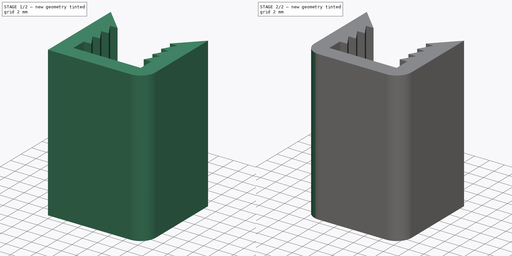
[diagram: build sequence overview — one tinted view per stage of 2, left to right]
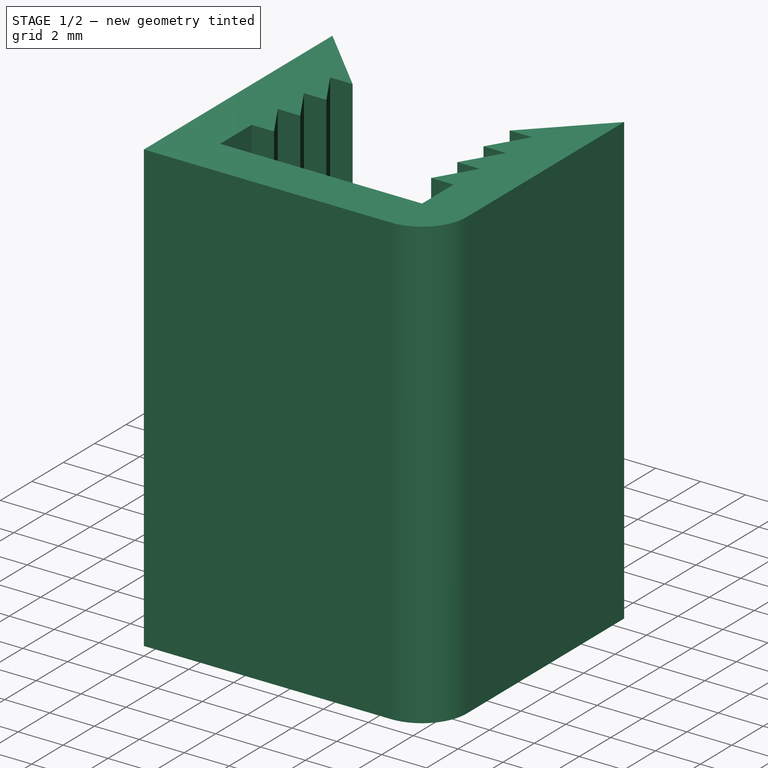
[diagram: stage 1 of 2 — iso view after this stage's code; geometry added in this stage tinted green]
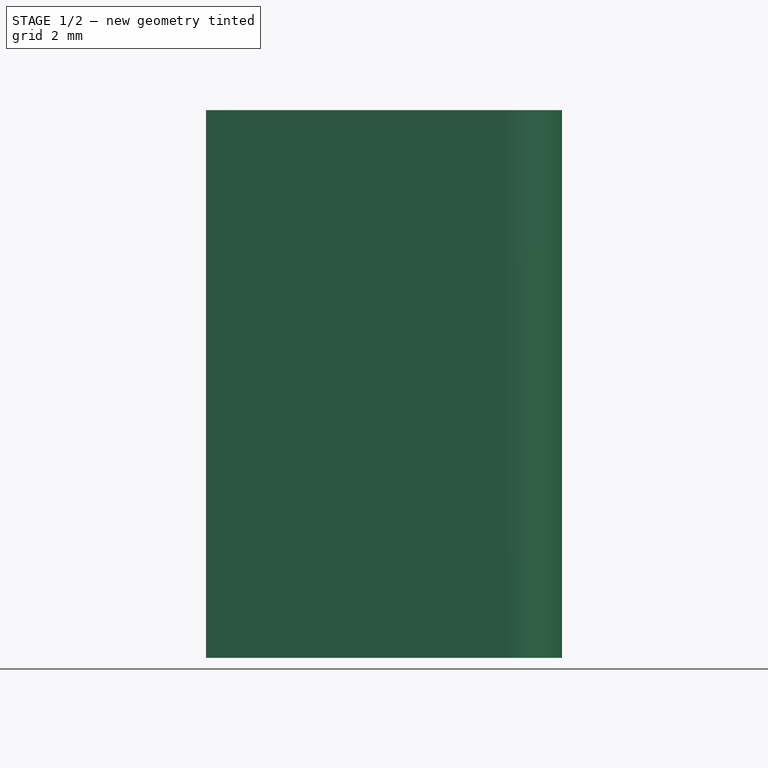
[diagram: stage 1 of 2 — front view after this stage's code; geometry added in this stage tinted green]
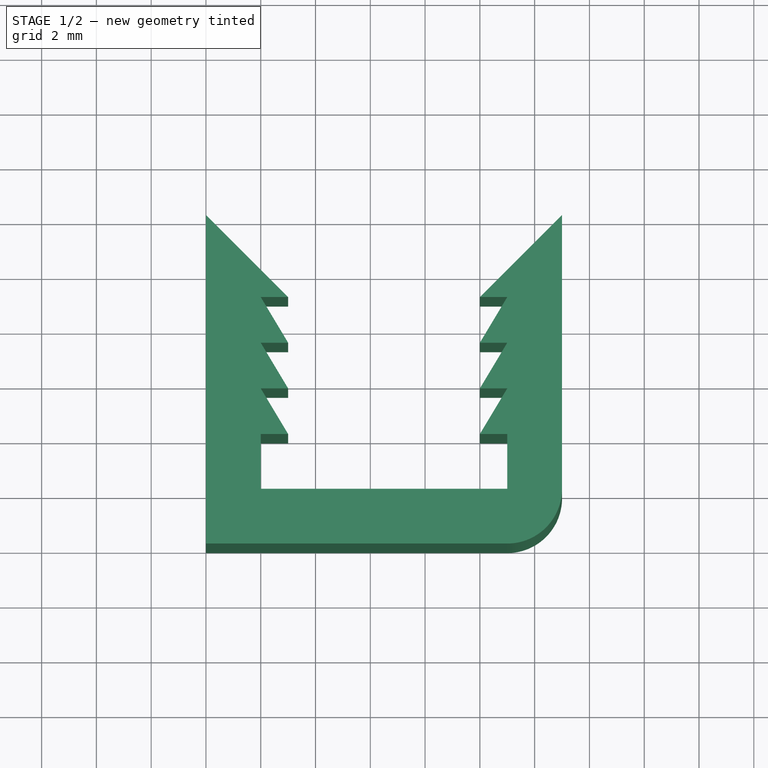
[diagram: stage 1 of 2 — top view after this stage's code; geometry added in this stage tinted green]
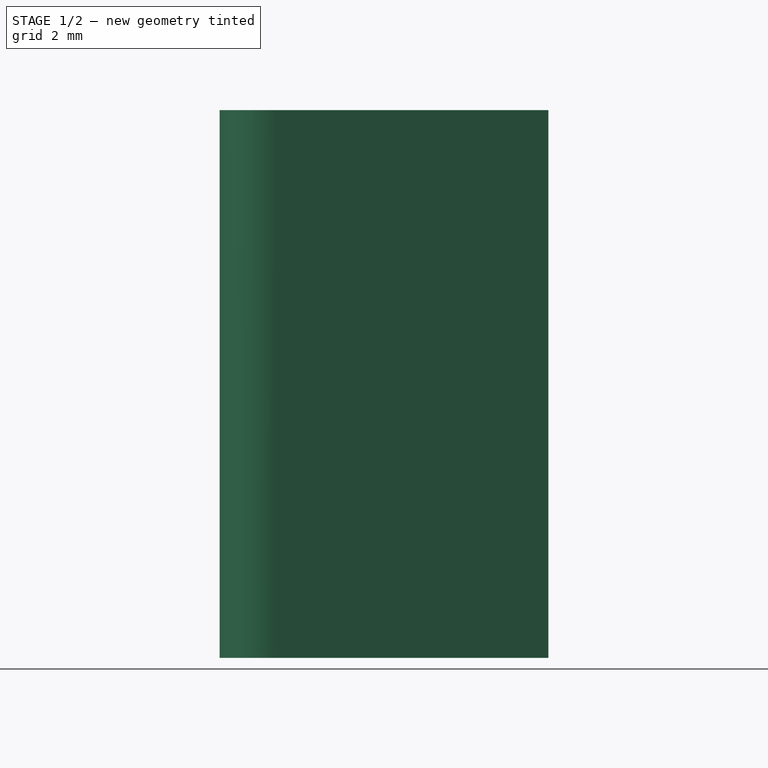
[diagram: stage 1 of 2 — right view after this stage's code; geometry added in this stage tinted green]
FCSTD DOCUMENT  (FreeCAD 0.18.4R)
Label: bed-clamp
License: All rights reserved
LicenseURL: http://en.wikipedia.org/wiki/All_rights_reserved
objects: PartDesign::Fillet×2, Sketcher::SketchObject×1, PartDesign::Pad×1, PartDesign::Body×1
note: 6 computed .brp shape members not serialized (recipe doc carries the construction recipe); baked Part::Feature solids carry a one-line shape summary decoded from their .brp

FEATURE [Sketcher::SketchObject] Sketch
  MapMode = 5
  Support = -> [XY_Plane]
  sketch-geometry (26):
    g0: LineSegment StartX=2 StartY=9 StartZ=0 EndX=3 EndY=9 EndZ=0
    g1: LineSegment StartX=3 StartY=9 StartZ=0 EndX=0 EndY=12 EndZ=0
    g2: LineSegment StartX=0 StartY=12 StartZ=0 EndX=0 EndY=0 EndZ=0
    g3: LineSegment StartX=0 StartY=0 StartZ=0 EndX=13 EndY=0 EndZ=0
    g4: LineSegment StartX=13 StartY=0 StartZ=0 EndX=13 EndY=12 EndZ=0
    g5: LineSegment StartX=13 StartY=12 StartZ=0 EndX=10 EndY=9 EndZ=0
    g6: LineSegment StartX=10 StartY=9 StartZ=0 EndX=11 EndY=9 EndZ=0
    g7: LineSegment StartX=11 StartY=9 StartZ=0 EndX=10 EndY=7.33333 EndZ=0
    g8: LineSegment StartX=10 StartY=7.33333 StartZ=0 EndX=11 EndY=7.33333 EndZ=0
    g9: LineSegment StartX=11 StartY=7.33333 StartZ=0 EndX=10 EndY=5.66667 EndZ=0
    g10: LineSegment StartX=10 StartY=5.66667 StartZ=0 EndX=11 EndY=5.66667 EndZ=0
    g11: LineSegment StartX=11 StartY=5.66667 StartZ=0 EndX=10 EndY=4 EndZ=0
    g12: LineSegment StartX=10 StartY=4 StartZ=0 EndX=11 EndY=4 EndZ=0
    g13: LineSegment StartX=11 StartY=4 StartZ=0 EndX=11 EndY=2 EndZ=0
    g14: LineSegment StartX=11 StartY=2 StartZ=0 EndX=2 EndY=2 EndZ=0
    g15: LineSegment StartX=2 StartY=2 StartZ=0 EndX=2 EndY=4 EndZ=0
    g16: LineSegment StartX=2 StartY=4 StartZ=0 EndX=3 EndY=4 EndZ=0
    g17: LineSegment StartX=3 StartY=4 StartZ=0 EndX=2 EndY=5.66667 EndZ=0
    g18: LineSegment StartX=2 StartY=5.66667 StartZ=0 EndX=3 EndY=5.66667 EndZ=0
    g19: LineSegment StartX=3 StartY=5.66667 StartZ=0 EndX=2 EndY=7.33333 EndZ=0
    g20: LineSegment StartX=2 StartY=7.33333 StartZ=0 EndX=3 EndY=7.33333 EndZ=0
    g21: LineSegment StartX=3 StartY=7.33333 StartZ=0 EndX=2 EndY=9 EndZ=0
    g22: LineSegment [constr] StartX=3 StartY=9 StartZ=0 EndX=10 EndY=9 EndZ=0
    g23: LineSegment [constr] StartX=10 StartY=9 StartZ=0 EndX=10 EndY=2 EndZ=0
    g24: LineSegment [constr] StartX=10 StartY=2 StartZ=0 EndX=3 EndY=2 EndZ=0
    g25: LineSegment [constr] StartX=3 StartY=2 StartZ=0 EndX=3 EndY=9 EndZ=0
  constraints (75):
    c: Horizontal(g0)
    c: Coincident(g0,g1)
    c: Coincident(g1,g2)
    c: Vertical(g2)
    c: Coincident(g2,g3)
    c: Coincident(g3,g4)
    c: Vertical(g4)
    c: Coincident(g4,g5)
    c: Horizontal(g6)
    c: Coincident(g6,g7)
    c: Horizontal(g8)
    c: Coincident(g8,g9)
    c: Horizontal(g10)
    c: Coincident(g10,g11)
    c: Horizontal(g12)
    c: Coincident(g12,g13)
    c: Vertical(g13)
    c: Coincident(g13,g14)
    c: Horizontal(g14)
    c: Coincident(g14,g15)
    c: Vertical(g15)
    c: Coincident(g15,g16)
    c: Horizontal(g16)
    c: Coincident(g16,g17)
    c: Coincident(g17,g18)
    c: Horizontal(g18)
    c: Coincident(g18,g19)
    c: Coincident(g19,g20)
    c: Horizontal(g20)
    c: Coincident(g20,g21)
    c: Coincident(g21,g0)
    c: Equal(g21,g7)
    c: Equal(g7,g9)
    c: Equal(g9,g19)
    c: Equal(g19,g17)
    c: Equal(g17,g11)
    c: Equal(g1,g5)
    c: Equal(g2,g4)
    c: Horizontal(g3)
    c: Equal(g15,g13)
    c: Equal(g0,g20)
    c: Equal(g20,g18)
    c: Equal(g18,g16)
    c: Equal(g16,g12)
    c: Equal(g12,g10)
    c: Equal(g10,g8)
    c: Equal(g8,g6)
    c: Parallel(g11,g9)
    c: Parallel(g9,g7)
    c: Parallel(g19,g17)
    c: Coincident(g22,g23)
    c: Coincident(g23,g24)
    c: Coincident(g24,g25)
    c: Coincident(g25,g22)
    c: Horizontal(g24)
    c: Vertical(g23)
    c: Vertical(g25)
    c: Coincident(g10,g9)
    c: Coincident(g12,g11)
    c: Coincident(g7,g8)
    c: Coincident(g5,g6)
    c: PointOnObject(g20,g25)
    c: DistanceY(g3,g13) = 2
    c: DistanceX(g1,g0) = 2
    c: DistanceX(g24,g24) = 7
    c: Coincident(g2,g-1)
    c: PointOnObject(g24,g14)
    c: Coincident(g22,g0)
    c: Coincident(g22,g5)
    c: DistanceX(g16,g16) = 1
    c: DistanceY(g13,g13) = 2
    c: Horizontal(g22)
    c: DistanceY(g2,g2) = 12
    c: PointOnObject(g16,g25)
    c: DistanceY(g2,g0) = 9
FEATURE [PartDesign::Pad] Pad
  Length = 20
  Length2 = 100
  Profile = -> Sketch
  Type = 0
FEATURE [PartDesign::Fillet] Fillet
  Base = -> Pad [Edge11]
  BaseFeature = -> Pad
  Radius = 2
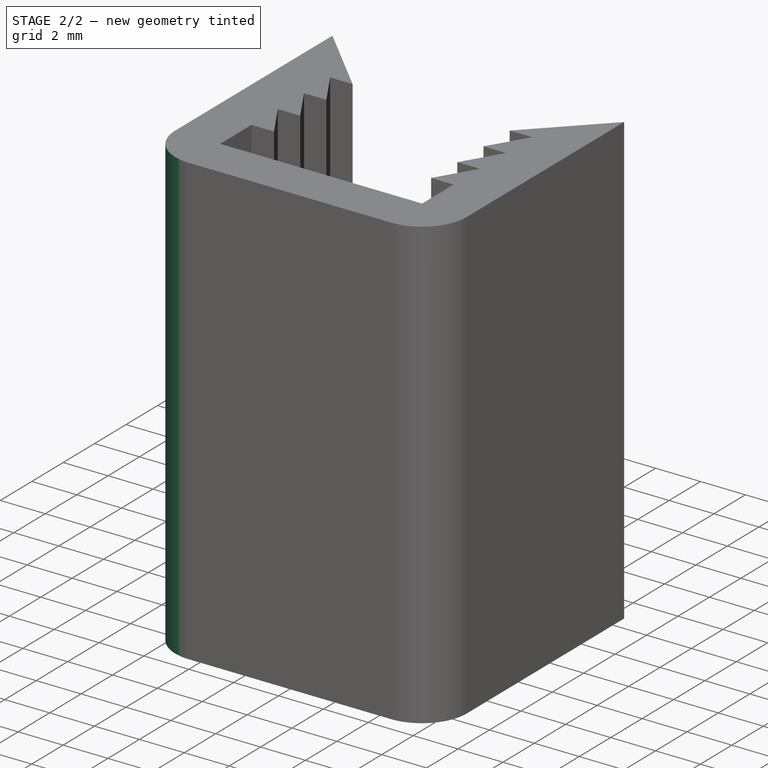
[diagram: stage 2 of 2 — iso view after this stage's code; geometry added in this stage tinted green]
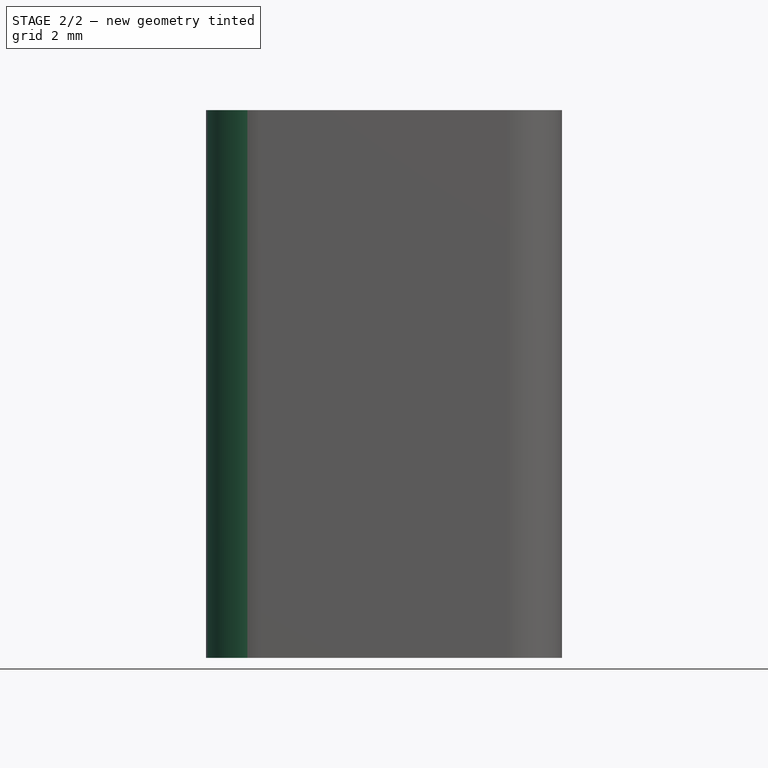
[diagram: stage 2 of 2 — front view after this stage's code; geometry added in this stage tinted green]
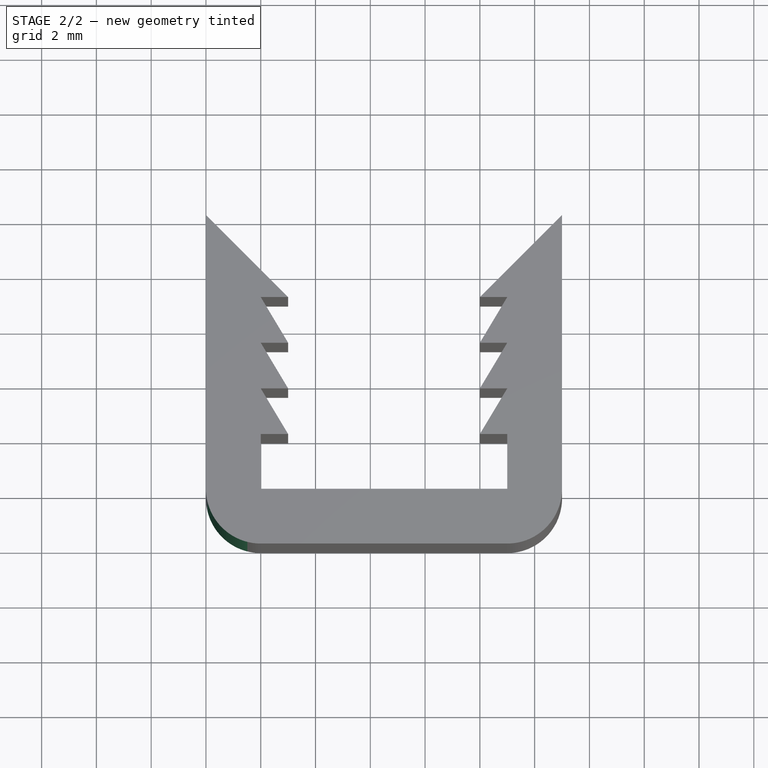
[diagram: stage 2 of 2 — top view after this stage's code; geometry added in this stage tinted green]
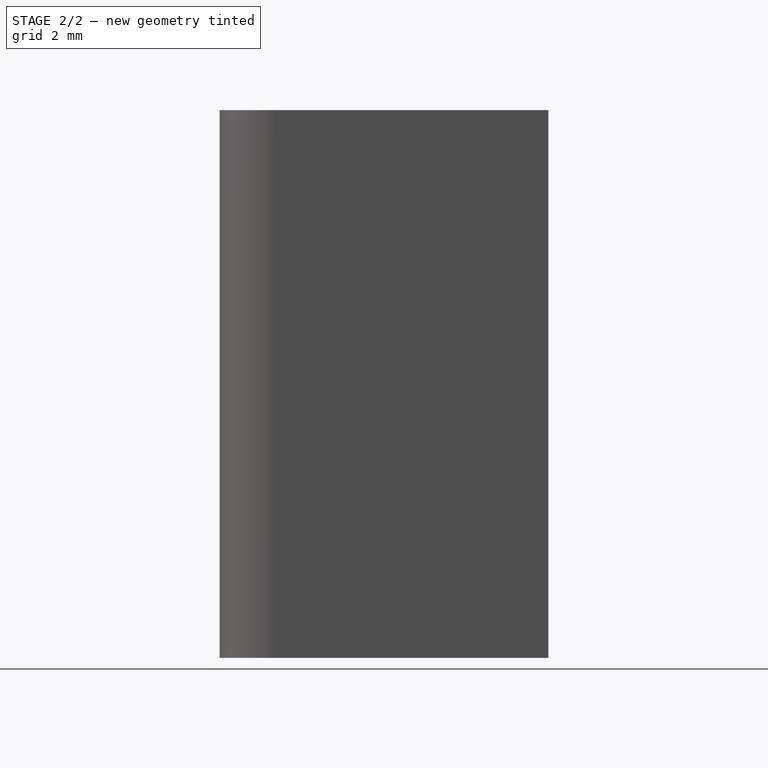
[diagram: stage 2 of 2 — right view after this stage's code; geometry added in this stage tinted green]
FEATURE [PartDesign::Fillet] Fillet001
  Base = -> Fillet [Edge3]
  BaseFeature = -> Fillet
  Radius = 2
FEATURE [PartDesign::Body] Body
  Group = -> [Sketch,Pad,Fillet,Fillet001]
  Origin = -> Origin
  Tip = -> Fillet001
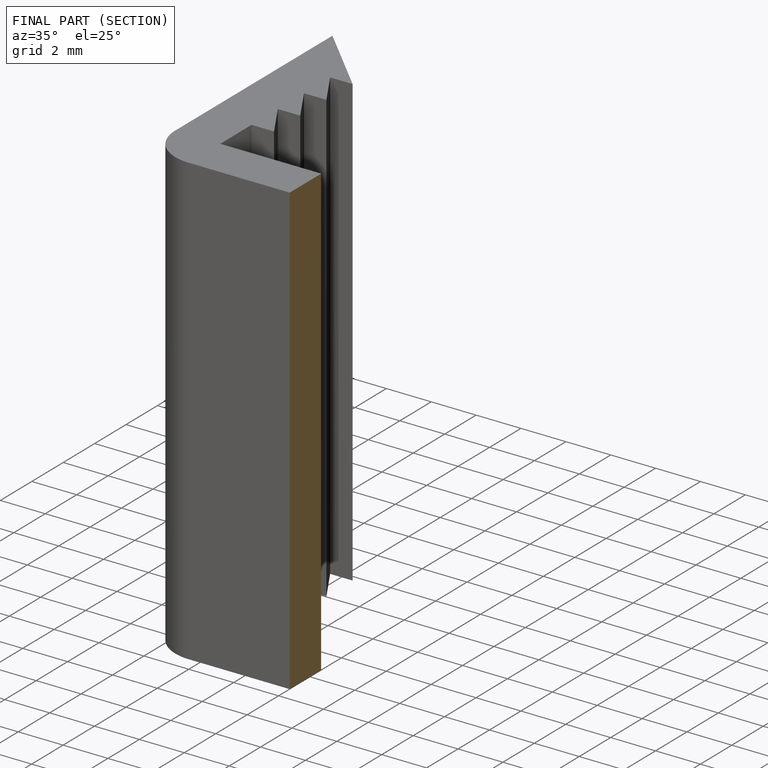
[diagram: finished part — half-section view (interior)]
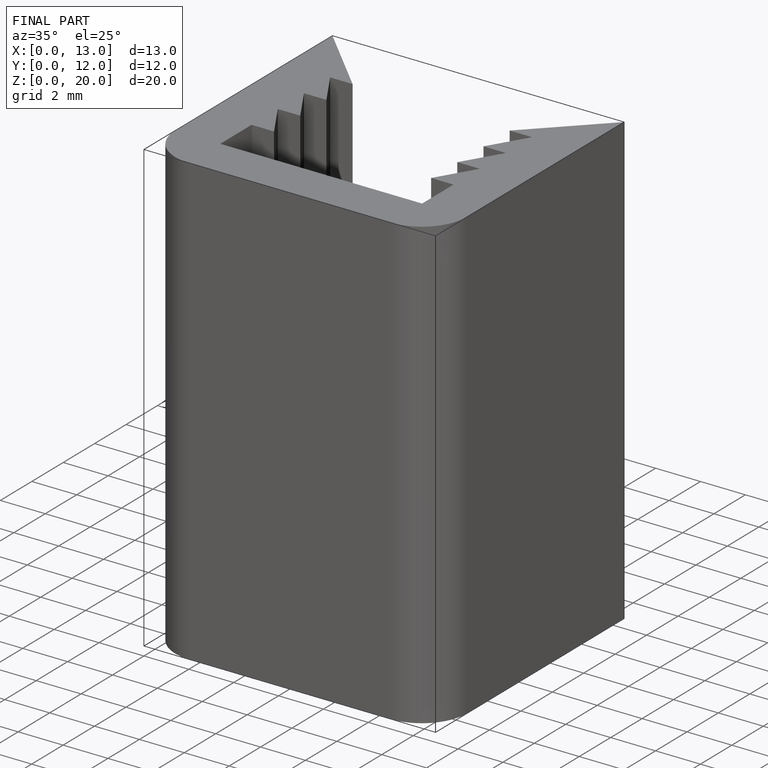
[diagram: finished part — iso view with bounding-box wireframe]
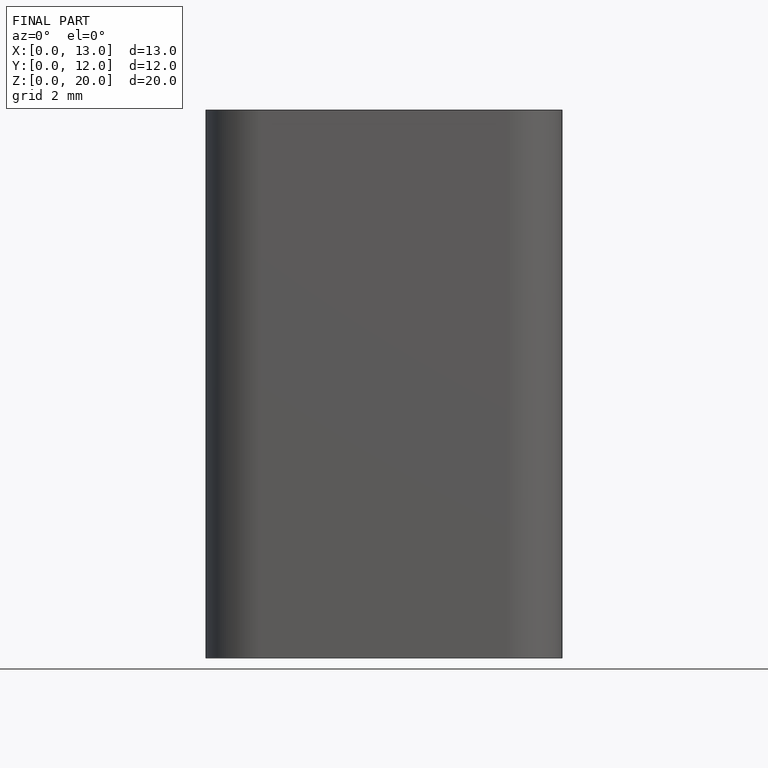
[diagram: finished part — front view with bounding-box wireframe]
